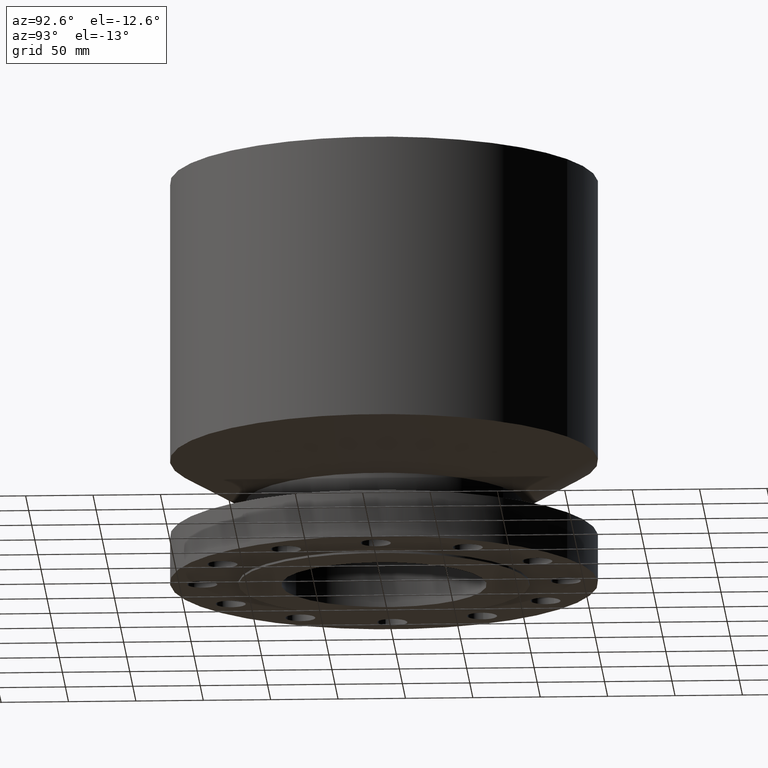
[diagram: clean part render]
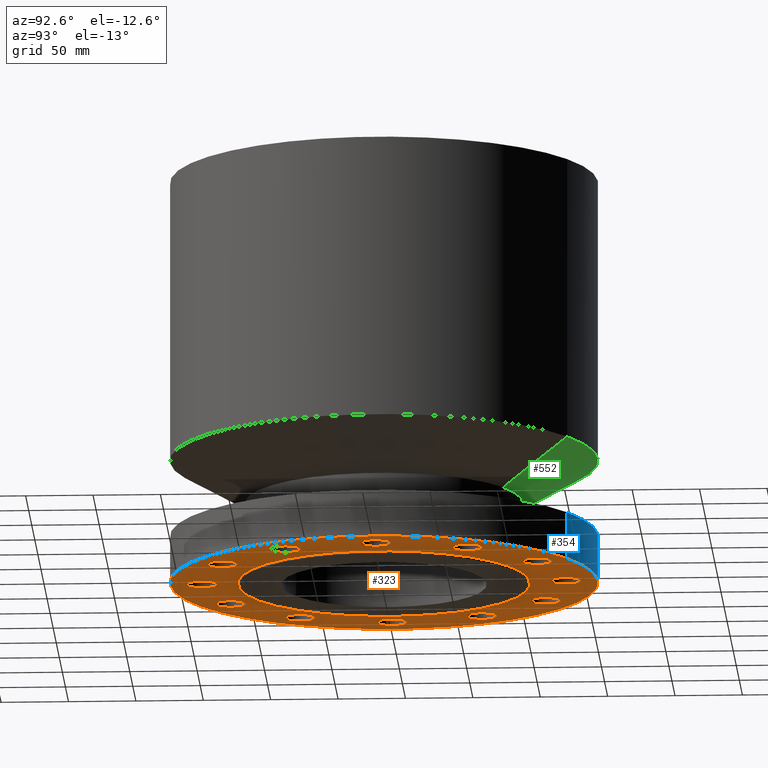
[diagram: same view with three faces highlighted in distinct colors, each labeled with its STEP entity id]
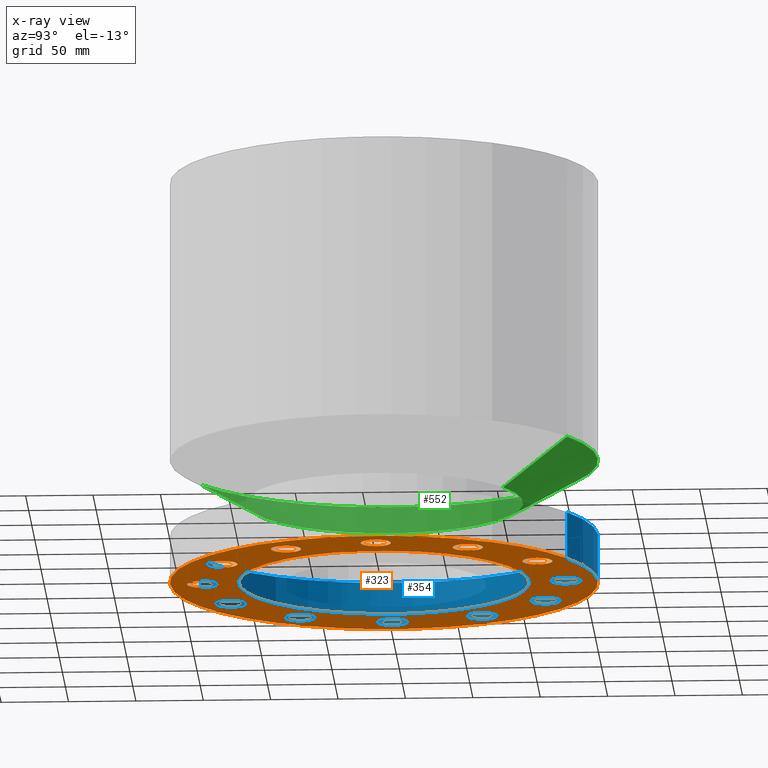
[diagram: x-ray of the same camera — body ghosted, the three highlighted faces saturated]
A machine part, auxiliary view with three faces highlighted in distinct colors.
The next image is the same camera in x-ray (body ghosted, the three faces saturated) — at least one of them is partly hidden behind the body in this view.
Their STEP definitions:

[orange] entity #323 — the highlighted planar face has unit normal (0, 0, -1).
#51=AXIS2_PLACEMENT_3D('Circle Axis2P3D',#49,#50,$) ;
#78=AXIS2_PLACEMENT_3D('Plane Axis2P3D',#75,#76,#77) ;
#82=AXIS2_PLACEMENT_3D('Circle Axis2P3D',#80,#81,$) ;
#91=AXIS2_PLACEMENT_3D('Circle Axis2P3D',#89,#90,$) ;
#100=AXIS2_PLACEMENT_3D('Circle Axis2P3D',#98,#99,$) ;
#109=AXIS2_PLACEMENT_3D('Circle Axis2P3D',#107,#108,$) ;
#118=AXIS2_PLACEMENT_3D('Circle Axis2P3D',#116,#117,$) ;
#127=AXIS2_PLACEMENT_3D('Circle Axis2P3D',#125,#126,$) ;
#136=AXIS2_PLACEMENT_3D('Circle Axis2P3D',#134,#135,$) ;
#145=AXIS2_PLACEMENT_3D('Circle Axis2P3D',#143,#144,$) ;
#154=AXIS2_PLACEMENT_3D('Circle Axis2P3D',#152,#153,$) ;
#163=AXIS2_PLACEMENT_3D('Circle Axis2P3D',#161,#162,$) ;
#172=AXIS2_PLACEMENT_3D('Circle Axis2P3D',#170,#171,$) ;
#181=AXIS2_PLACEMENT_3D('Circle Axis2P3D',#179,#180,$) ;
#190=AXIS2_PLACEMENT_3D('Circle Axis2P3D',#188,#189,$) ;
#199=AXIS2_PLACEMENT_3D('Circle Axis2P3D',#197,#198,$) ;
#208=AXIS2_PLACEMENT_3D('Circle Axis2P3D',#206,#207,$) ;
#217=AXIS2_PLACEMENT_3D('Circle Axis2P3D',#215,#216,$) ;
#226=AXIS2_PLACEMENT_3D('Circle Axis2P3D',#224,#225,$) ;
#235=AXIS2_PLACEMENT_3D('Circle Axis2P3D',#233,#234,$) ;
#244=AXIS2_PLACEMENT_3D('Circle Axis2P3D',#242,#243,$) ;
#253=AXIS2_PLACEMENT_3D('Circle Axis2P3D',#251,#252,$) ;
#262=AXIS2_PLACEMENT_3D('Circle Axis2P3D',#260,#261,$) ;
#271=AXIS2_PLACEMENT_3D('Circle Axis2P3D',#269,#270,$) ;
#280=AXIS2_PLACEMENT_3D('Circle Axis2P3D',#278,#279,$) ;
#289=AXIS2_PLACEMENT_3D('Circle Axis2P3D',#287,#288,$) ;
#298=AXIS2_PLACEMENT_3D('Circle Axis2P3D',#296,#297,$) ;
#307=AXIS2_PLACEMENT_3D('Circle Axis2P3D',#305,#306,$) ;
#316=AXIS2_PLACEMENT_3D('Circle Axis2P3D',#314,#315,$) ;
#46=CARTESIAN_POINT('Vertex',(5.69613632725,0.210947236987,2.2401153548E-016)) ;
#49=CARTESIAN_POINT('Axis2P3D Location',(5.31000000002,0.,0.)) ;
#53=CARTESIAN_POINT('Vertex',(4.92386367279,-0.210947236987,2.2401153548E-016)) ;
#75=CARTESIAN_POINT('Axis2P3D Location',(0.,4.25000000002,0.)) ;
#80=CARTESIAN_POINT('Axis2P3D Location',(0.,0.,0.)) ;
#84=CARTESIAN_POINT('Vertex',(-2.99640961629,-5.48489101184,1.1189649382E-015)) ;
#86=CARTESIAN_POINT('Vertex',(2.99640961629,5.48489101184,1.1189649382E-015)) ;
#89=CARTESIAN_POINT('Axis2P3D Location',(0.,0.,0.)) ;
#98=CARTESIAN_POINT('Axis2P3D Location',(5.31000000002,5.59482469102E-016,0.)) ;
#107=CARTESIAN_POINT('Axis2P3D Location',(0.,0.,0.)) ;
#111=CARTESIAN_POINT('Vertex',(2.03755853908,3.72972588805,0.)) ;
#113=CARTESIAN_POINT('Vertex',(-2.03755853908,-3.72972588805,0.)) ;
#116=CARTESIAN_POINT('Axis2P3D Location',(0.,0.,0.)) ;
#125=CARTESIAN_POINT('Axis2P3D Location',(4.59859489411,-2.65500000001,0.)) ;
#129=CARTESIAN_POINT('Vertex',(5.03847238132,-2.66538249754,0.)) ;
#131=CARTESIAN_POINT('Vertex',(4.15871740691,-2.64461750248,0.)) ;
#134=CARTESIAN_POINT('Axis2P3D Location',(4.59859489411,-2.65500000001,0.)) ;
#143=CARTESIAN_POINT('Axis2P3D Location',(2.65500000001,-4.59859489411,0.)) ;
#147=CARTESIAN_POINT('Vertex',(3.03075382972,-4.82752514433,0.)) ;
#149=CARTESIAN_POINT('Vertex',(2.27924617031,-4.3696646439,0.)) ;
#152=CARTESIAN_POINT('Axis2P3D Location',(2.65500000001,-4.59859489411,0.)) ;
#161=CARTESIAN_POINT('Axis2P3D Location',(-8.74191357973E-016,-5.31000000002,0.)) ;
#165=CARTESIAN_POINT('Vertex',(0.210947236987,-5.69613632725,0.)) ;
#167=CARTESIAN_POINT('Vertex',(-0.210947236987,-4.92386367279,0.)) ;
#170=CARTESIAN_POINT('Axis2P3D Location',(-1.22386790116E-015,-5.31000000002,0.)) ;
#179=CARTESIAN_POINT('Axis2P3D Location',(-2.65500000001,-4.59859489411,0.)) ;
#183=CARTESIAN_POINT('Vertex',(-2.66538249754,-5.03847238132,0.)) ;
#185=CARTESIAN_POINT('Vertex',(-2.64461750248,-4.15871740691,0.)) ;
#188=CARTESIAN_POINT('Axis2P3D Location',(-2.65500000001,-4.59859489411,0.)) ;
#197=CARTESIAN_POINT('Axis2P3D Location',(-4.59859489411,-2.65500000001,0.)) ;
#201=CARTESIAN_POINT('Vertex',(-4.82752514433,-3.03075382972,0.)) ;
#203=CARTESIAN_POINT('Vertex',(-4.3696646439,-2.27924617031,0.)) ;
#206=CARTESIAN_POINT('Axis2P3D Location',(-4.59859489411,-2.65500000001,0.)) ;
#215=CARTESIAN_POINT('Axis2P3D Location',(-5.31000000002,-5.59482469102E-016,0.)) ;
#219=CARTESIAN_POINT('Vertex',(-5.69613632725,-0.210947236987,0.)) ;
#221=CARTESIAN_POINT('Vertex',(-4.92386367279,0.210947236987,0.)) ;
#224=CARTESIAN_POINT('Axis2P3D Location',(-5.31000000002,-1.1189649382E-015,0.)) ;
#233=CARTESIAN_POINT('Axis2P3D Location',(-4.59859489411,2.65500000001,0.)) ;
#237=CARTESIAN_POINT('Vertex',(-5.03847238132,2.66538249754,0.)) ;
#239=CARTESIAN_POINT('Vertex',(-4.15871740691,2.64461750248,0.)) ;
#242=CARTESIAN_POINT('Axis2P3D Location',(-4.59859489411,2.65500000001,0.)) ;
#251=CARTESIAN_POINT('Axis2P3D Location',(-2.65500000001,4.59859489411,0.)) ;
#255=CARTESIAN_POINT('Vertex',(-3.03075382972,4.82752514433,0.)) ;
#257=CARTESIAN_POINT('Vertex',(-2.27924617031,4.3696646439,0.)) ;
#260=CARTESIAN_POINT('Axis2P3D Location',(-2.65500000001,4.59859489411,0.)) ;
#269=CARTESIAN_POINT('Axis2P3D Location',(-8.74191357973E-016,5.31000000002,0.)) ;
#273=CARTESIAN_POINT('Vertex',(-0.210947236987,5.69613632725,0.)) ;
#275=CARTESIAN_POINT('Vertex',(0.210947236987,4.92386367279,0.)) ;
#278=CARTESIAN_POINT('Axis2P3D Location',(-1.01406197525E-015,5.31000000002,0.)) ;
#287=CARTESIAN_POINT('Axis2P3D Location',(2.65500000001,4.59859489411,0.)) ;
#291=CARTESIAN_POINT('Vertex',(2.66538249754,5.03847238132,0.)) ;
#293=CARTESIAN_POINT('Vertex',(2.64461750248,4.15871740691,0.)) ;
#296=CARTESIAN_POINT('Axis2P3D Location',(2.65500000001,4.59859489411,0.)) ;
#305=CARTESIAN_POINT('Axis2P3D Location',(4.59859489411,2.65500000001,0.)) ;
#309=CARTESIAN_POINT('Vertex',(4.82752514433,3.03075382972,0.)) ;
#311=CARTESIAN_POINT('Vertex',(4.3696646439,2.27924617031,0.)) ;
#314=CARTESIAN_POINT('Axis2P3D Location',(4.59859489411,2.65500000001,0.)) ;
#50=DIRECTION('Axis2P3D Direction',(0.,-0.,0.0393700787402)) ;
#76=DIRECTION('Axis2P3D Direction',(0.,0.,-0.0393700787402)) ;
#77=DIRECTION('Axis2P3D XDirection',(0.0393700787402,0.,0.)) ;
#81=DIRECTION('Axis2P3D Direction',(0.,0.,-0.0393700787402)) ;
#90=DIRECTION('Axis2P3D Direction',(0.,0.,-0.0393700787402)) ;
#99=DIRECTION('Axis2P3D Direction',(0.,0.,-0.0393700787402)) ;
#108=DIRECTION('Axis2P3D Direction',(0.,0.,-0.0393700787402)) ;
#117=DIRECTION('Axis2P3D Direction',(0.,0.,-0.0393700787402)) ;
#126=DIRECTION('Axis2P3D Direction',(0.,0.,-0.0393700787402)) ;
#135=DIRECTION('Axis2P3D Direction',(0.,0.,-0.0393700787402)) ;
#144=DIRECTION('Axis2P3D Direction',(0.,0.,-0.0393700787402)) ;
#153=DIRECTION('Axis2P3D Direction',(0.,0.,-0.0393700787402)) ;
#162=DIRECTION('Axis2P3D Direction',(0.,0.,-0.0393700787402)) ;
#171=DIRECTION('Axis2P3D Direction',(0.,0.,-0.0393700787402)) ;
#180=DIRECTION('Axis2P3D Direction',(0.,0.,-0.0393700787402)) ;
#189=DIRECTION('Axis2P3D Direction',(0.,0.,-0.0393700787402)) ;
#198=DIRECTION('Axis2P3D Direction',(0.,0.,-0.0393700787402)) ;
#207=DIRECTION('Axis2P3D Direction',(0.,0.,-0.0393700787402)) ;
#216=DIRECTION('Axis2P3D Direction',(0.,0.,-0.0393700787402)) ;
#225=DIRECTION('Axis2P3D Direction',(0.,0.,-0.0393700787402)) ;
#234=DIRECTION('Axis2P3D Direction',(0.,0.,-0.0393700787402)) ;
#243=DIRECTION('Axis2P3D Direction',(0.,0.,-0.0393700787402)) ;
#252=DIRECTION('Axis2P3D Direction',(0.,0.,-0.0393700787402)) ;
#261=DIRECTION('Axis2P3D Direction',(0.,0.,-0.0393700787402)) ;
#270=DIRECTION('Axis2P3D Direction',(0.,0.,-0.0393700787402)) ;
#279=DIRECTION('Axis2P3D Direction',(0.,0.,-0.0393700787402)) ;
#288=DIRECTION('Axis2P3D Direction',(0.,0.,-0.0393700787402)) ;
#297=DIRECTION('Axis2P3D Direction',(0.,0.,-0.0393700787402)) ;
#306=DIRECTION('Axis2P3D Direction',(0.,0.,-0.0393700787402)) ;
#315=DIRECTION('Axis2P3D Direction',(0.,0.,-0.0393700787402)) ;
#95=ORIENTED_EDGE('',*,*,#88,.T.) ;
#96=ORIENTED_EDGE('',*,*,#93,.T.) ;
#104=ORIENTED_EDGE('',*,*,#102,.F.) ;
#105=ORIENTED_EDGE('',*,*,#55,.F.) ;
#122=ORIENTED_EDGE('',*,*,#115,.F.) ;
#123=ORIENTED_EDGE('',*,*,#120,.F.) ;
#140=ORIENTED_EDGE('',*,*,#133,.F.) ;
#141=ORIENTED_EDGE('',*,*,#138,.F.) ;
#158=ORIENTED_EDGE('',*,*,#151,.F.) ;
#159=ORIENTED_EDGE('',*,*,#156,.F.) ;
#176=ORIENTED_EDGE('',*,*,#169,.F.) ;
#177=ORIENTED_EDGE('',*,*,#174,.F.) ;
#194=ORIENTED_EDGE('',*,*,#187,.F.) ;
#195=ORIENTED_EDGE('',*,*,#192,.F.) ;
#212=ORIENTED_EDGE('',*,*,#205,.F.) ;
#213=ORIENTED_EDGE('',*,*,#210,.F.) ;
#230=ORIENTED_EDGE('',*,*,#223,.F.) ;
#231=ORIENTED_EDGE('',*,*,#228,.F.) ;
#248=ORIENTED_EDGE('',*,*,#241,.F.) ;
#249=ORIENTED_EDGE('',*,*,#246,.F.) ;
#266=ORIENTED_EDGE('',*,*,#259,.F.) ;
#267=ORIENTED_EDGE('',*,*,#264,.F.) ;
#284=ORIENTED_EDGE('',*,*,#277,.F.) ;
#285=ORIENTED_EDGE('',*,*,#282,.F.) ;
#302=ORIENTED_EDGE('',*,*,#295,.F.) ;
#303=ORIENTED_EDGE('',*,*,#300,.F.) ;
#320=ORIENTED_EDGE('',*,*,#313,.F.) ;
#321=ORIENTED_EDGE('',*,*,#318,.F.) ;
#106=FACE_BOUND('',#103,.T.) ;
#124=FACE_BOUND('',#121,.T.) ;
#142=FACE_BOUND('',#139,.T.) ;
#160=FACE_BOUND('',#157,.T.) ;
#178=FACE_BOUND('',#175,.T.) ;
#196=FACE_BOUND('',#193,.T.) ;
#214=FACE_BOUND('',#211,.T.) ;
#232=FACE_BOUND('',#229,.T.) ;
#250=FACE_BOUND('',#247,.T.) ;
#268=FACE_BOUND('',#265,.T.) ;
#286=FACE_BOUND('',#283,.T.) ;
#304=FACE_BOUND('',#301,.T.) ;
#322=FACE_BOUND('',#319,.T.) ;
#323=ADVANCED_FACE('PartBody',(#97,#106,#124,#142,#160,#178,#196,#214,#232,#250,#268,#286,#304,#322),#79,.T.) ;
#52=CIRCLE('generated circle',#51,0.440000000002) ;
#83=CIRCLE('generated circle',#82,6.25000000003) ;
#92=CIRCLE('generated circle',#91,6.25000000003) ;
#101=CIRCLE('generated circle',#100,0.440000000002) ;
#110=CIRCLE('generated circle',#109,4.25000000002) ;
#119=CIRCLE('generated circle',#118,4.25000000002) ;
#128=CIRCLE('generated circle',#127,0.440000000002) ;
#137=CIRCLE('generated circle',#136,0.440000000002) ;
#146=CIRCLE('generated circle',#145,0.440000000002) ;
#155=CIRCLE('generated circle',#154,0.440000000002) ;
#164=CIRCLE('generated circle',#163,0.440000000002) ;
#173=CIRCLE('generated circle',#172,0.440000000002) ;
#182=CIRCLE('generated circle',#181,0.440000000002) ;
#191=CIRCLE('generated circle',#190,0.440000000002) ;
#200=CIRCLE('generated circle',#199,0.440000000002) ;
#209=CIRCLE('generated circle',#208,0.440000000002) ;
#218=CIRCLE('generated circle',#217,0.440000000002) ;
#227=CIRCLE('generated circle',#226,0.440000000002) ;
#236=CIRCLE('generated circle',#235,0.440000000002) ;
#245=CIRCLE('generated circle',#244,0.440000000002) ;
#254=CIRCLE('generated circle',#253,0.440000000002) ;
#263=CIRCLE('generated circle',#262,0.440000000002) ;
#272=CIRCLE('generated circle',#271,0.440000000002) ;
#281=CIRCLE('generated circle',#280,0.440000000002) ;
#290=CIRCLE('generated circle',#289,0.440000000002) ;
#299=CIRCLE('generated circle',#298,0.440000000002) ;
#308=CIRCLE('generated circle',#307,0.440000000002) ;
#317=CIRCLE('generated circle',#316,0.440000000002) ;
#55=EDGE_CURVE('',#47,#54,#52,.F.) ;
#88=EDGE_CURVE('',#85,#87,#83,.T.) ;
#93=EDGE_CURVE('',#87,#85,#92,.T.) ;
#102=EDGE_CURVE('',#54,#47,#101,.T.) ;
#115=EDGE_CURVE('',#112,#114,#110,.T.) ;
#120=EDGE_CURVE('',#114,#112,#119,.T.) ;
#133=EDGE_CURVE('',#130,#132,#128,.T.) ;
#138=EDGE_CURVE('',#132,#130,#137,.T.) ;
#151=EDGE_CURVE('',#148,#150,#146,.T.) ;
#156=EDGE_CURVE('',#150,#148,#155,.T.) ;
#169=EDGE_CURVE('',#166,#168,#164,.T.) ;
#174=EDGE_CURVE('',#168,#166,#173,.T.) ;
#187=EDGE_CURVE('',#184,#186,#182,.T.) ;
#192=EDGE_CURVE('',#186,#184,#191,.T.) ;
#205=EDGE_CURVE('',#202,#204,#200,.T.) ;
#210=EDGE_CURVE('',#204,#202,#209,.T.) ;
#223=EDGE_CURVE('',#220,#222,#218,.T.) ;
#228=EDGE_CURVE('',#222,#220,#227,.T.) ;
#241=EDGE_CURVE('',#238,#240,#236,.T.) ;
#246=EDGE_CURVE('',#240,#238,#245,.T.) ;
#259=EDGE_CURVE('',#256,#258,#254,.T.) ;
#264=EDGE_CURVE('',#258,#256,#263,.T.) ;
#277=EDGE_CURVE('',#274,#276,#272,.T.) ;
#282=EDGE_CURVE('',#276,#274,#281,.T.) ;
#295=EDGE_CURVE('',#292,#294,#290,.T.) ;
#300=EDGE_CURVE('',#294,#292,#299,.T.) ;
#313=EDGE_CURVE('',#310,#312,#308,.T.) ;
#318=EDGE_CURVE('',#312,#310,#317,.T.) ;
#94=EDGE_LOOP('',(#95,#96)) ;
#103=EDGE_LOOP('',(#104,#105)) ;
#121=EDGE_LOOP('',(#122,#123)) ;
#139=EDGE_LOOP('',(#140,#141)) ;
#157=EDGE_LOOP('',(#158,#159)) ;
#175=EDGE_LOOP('',(#176,#177)) ;
#193=EDGE_LOOP('',(#194,#195)) ;
#211=EDGE_LOOP('',(#212,#213)) ;
#229=EDGE_LOOP('',(#230,#231)) ;
#247=EDGE_LOOP('',(#248,#249)) ;
#265=EDGE_LOOP('',(#266,#267)) ;
#283=EDGE_LOOP('',(#284,#285)) ;
#301=EDGE_LOOP('',(#302,#303)) ;
#319=EDGE_LOOP('',(#320,#321)) ;
#97=FACE_OUTER_BOUND('',#94,.T.) ;
#79=PLANE('',#78) ;
#47=VERTEX_POINT('',#46) ;
#54=VERTEX_POINT('',#53) ;
#85=VERTEX_POINT('',#84) ;
#87=VERTEX_POINT('',#86) ;
#112=VERTEX_POINT('',#111) ;
#114=VERTEX_POINT('',#113) ;
#130=VERTEX_POINT('',#129) ;
#132=VERTEX_POINT('',#131) ;
#148=VERTEX_POINT('',#147) ;
#150=VERTEX_POINT('',#149) ;
#166=VERTEX_POINT('',#165) ;
#168=VERTEX_POINT('',#167) ;
#184=VERTEX_POINT('',#183) ;
#186=VERTEX_POINT('',#185) ;
#202=VERTEX_POINT('',#201) ;
#204=VERTEX_POINT('',#203) ;
#220=VERTEX_POINT('',#219) ;
#222=VERTEX_POINT('',#221) ;
#238=VERTEX_POINT('',#237) ;
#240=VERTEX_POINT('',#239) ;
#256=VERTEX_POINT('',#255) ;
#258=VERTEX_POINT('',#257) ;
#274=VERTEX_POINT('',#273) ;
#276=VERTEX_POINT('',#275) ;
#292=VERTEX_POINT('',#291) ;
#294=VERTEX_POINT('',#293) ;
#310=VERTEX_POINT('',#309) ;
#312=VERTEX_POINT('',#311) ;

[blue] entity #354 — the highlighted cylindrical surface (partial cylindrical patch) has radius 158.75 mm, axis along (0, 0, -1).
#82=AXIS2_PLACEMENT_3D('Circle Axis2P3D',#80,#81,$) ;
#327=AXIS2_PLACEMENT_3D('Cylinder Axis2P3D',#324,#325,#326) ;
#338=AXIS2_PLACEMENT_3D('Circle Axis2P3D',#336,#337,$) ;
#80=CARTESIAN_POINT('Axis2P3D Location',(0.,0.,0.)) ;
#84=CARTESIAN_POINT('Vertex',(-2.99640961629,-5.48489101184,1.1189649382E-015)) ;
#86=CARTESIAN_POINT('Vertex',(2.99640961629,5.48489101184,1.1189649382E-015)) ;
#324=CARTESIAN_POINT('Axis2P3D Location',(0.,0.,5.93750000002)) ;
#329=CARTESIAN_POINT('Line Origine',(-2.99640961629,-5.48489101184,7.78969854479)) ;
#333=CARTESIAN_POINT('Vertex',(-2.99640961629,-5.48489101184,1.37750000001)) ;
#336=CARTESIAN_POINT('Axis2P3D Location',(0.,0.,1.37750000001)) ;
#340=CARTESIAN_POINT('Vertex',(2.99640961629,5.48489101184,1.37750000001)) ;
#343=CARTESIAN_POINT('Line Origine',(2.99640961629,5.48489101184,7.78969854479)) ;
#81=DIRECTION('Axis2P3D Direction',(0.,0.,-0.0393700787402)) ;
#325=DIRECTION('Axis2P3D Direction',(0.,0.,-0.0393700787402)) ;
#326=DIRECTION('Axis2P3D XDirection',(-0.0188750212049,-0.0345504945626,0.)) ;
#330=DIRECTION('Vector Direction',(0.,0.,-0.0393700787402)) ;
#337=DIRECTION('Axis2P3D Direction',(0.,0.,-0.0393700787402)) ;
#344=DIRECTION('Vector Direction',(0.,0.,-0.0393700787402)) ;
#331=VECTOR('Line Direction',#330,0.0393700787402) ;
#345=VECTOR('Line Direction',#344,0.0393700787402) ;
#349=ORIENTED_EDGE('',*,*,#88,.F.) ;
#350=ORIENTED_EDGE('',*,*,#335,.T.) ;
#351=ORIENTED_EDGE('',*,*,#342,.T.) ;
#352=ORIENTED_EDGE('',*,*,#347,.F.) ;
#354=ADVANCED_FACE('PartBody',(#353),#328,.T.) ;
#83=CIRCLE('generated circle',#82,6.25000000003) ;
#339=CIRCLE('generated circle',#338,6.25000000003) ;
#328=CYLINDRICAL_SURFACE('generated cylinder',#327,6.25000000003) ;
#88=EDGE_CURVE('',#85,#87,#83,.T.) ;
#335=EDGE_CURVE('',#85,#334,#332,.F.) ;
#342=EDGE_CURVE('',#334,#341,#339,.T.) ;
#347=EDGE_CURVE('',#87,#341,#346,.F.) ;
#348=EDGE_LOOP('',(#349,#350,#351,#352)) ;
#353=FACE_OUTER_BOUND('',#348,.T.) ;
#332=LINE('Line',#329,#331) ;
#346=LINE('Line',#343,#345) ;
#85=VERTEX_POINT('',#84) ;
#87=VERTEX_POINT('',#86) ;
#334=VERTEX_POINT('',#333) ;
#341=VERTEX_POINT('',#340) ;

[green] entity #552 — the highlighted conical surface has half-angle 60 deg.
#500=AXIS2_PLACEMENT_3D('Circle Axis2P3D',#498,#499,$) ;
#513=AXIS2_PLACEMENT_3D('Cone Axis2P3D',#510,#511,#512) ;
#543=AXIS2_PLACEMENT_3D('Circle Axis2P3D',#541,#542,$) ;
#476=CARTESIAN_POINT('Vertex',(1.94646768674,3.56298520129,2.37750000001)) ;
#483=CARTESIAN_POINT('Vertex',(-1.94646768674,-3.56298520129,2.37750000001)) ;
#498=CARTESIAN_POINT('Axis2P3D Location',(0.,0.,2.37750000001)) ;
#510=CARTESIAN_POINT('Axis2P3D Location',(0.,0.,2.37750000001)) ;
#515=CARTESIAN_POINT('Line Origine',(2.47143865151,4.52393810656,3.00969854477)) ;
#519=CARTESIAN_POINT('Vertex',(2.99640961629,5.48489101184,3.64189708954)) ;
#526=CARTESIAN_POINT('Vertex',(-2.99640961629,-5.48489101184,3.64189708954)) ;
#529=CARTESIAN_POINT('Line Origine',(-2.47143865151,-4.52393810656,3.00969854477)) ;
#541=CARTESIAN_POINT('Axis2P3D Location',(0.,0.,3.64189708954)) ;
#499=DIRECTION('Axis2P3D Direction',(0.,0.,-0.0393700787402)) ;
#511=DIRECTION('Axis2P3D Direction',(-0.,-0.,0.0393700787402)) ;
#512=DIRECTION('Axis2P3D XDirection',(0.0188750212049,0.0345504945626,0.)) ;
#516=DIRECTION('Vector Direction',(0.0163462478604,0.0299216060045,0.0196850393701)) ;
#530=DIRECTION('Vector Direction',(-0.0163462478604,-0.0299216060045,0.0196850393701)) ;
#542=DIRECTION('Axis2P3D Direction',(-0.,0.,0.0393700787402)) ;
#517=VECTOR('Line Direction',#516,0.0393700787402) ;
#531=VECTOR('Line Direction',#530,0.0393700787402) ;
#547=ORIENTED_EDGE('',*,*,#502,.F.) ;
#548=ORIENTED_EDGE('',*,*,#533,.T.) ;
#549=ORIENTED_EDGE('',*,*,#545,.T.) ;
#550=ORIENTED_EDGE('',*,*,#521,.F.) ;
#552=ADVANCED_FACE('PartBody',(#551),#514,.T.) ;
#501=CIRCLE('generated circle',#500,4.06000000002) ;
#544=CIRCLE('generated circle',#543,6.25000000002) ;
#514=CONICAL_SURFACE('Cone',#513,4.06000000002,1.0471975512) ;
#502=EDGE_CURVE('',#484,#477,#501,.T.) ;
#521=EDGE_CURVE('',#477,#520,#518,.T.) ;
#533=EDGE_CURVE('',#484,#527,#532,.T.) ;
#545=EDGE_CURVE('',#527,#520,#544,.F.) ;
#546=EDGE_LOOP('',(#547,#548,#549,#550)) ;
#551=FACE_OUTER_BOUND('',#546,.T.) ;
#518=LINE('Line',#515,#517) ;
#532=LINE('Line',#529,#531) ;
#477=VERTEX_POINT('',#476) ;
#484=VERTEX_POINT('',#483) ;
#520=VERTEX_POINT('',#519) ;
#527=VERTEX_POINT('',#526) ;